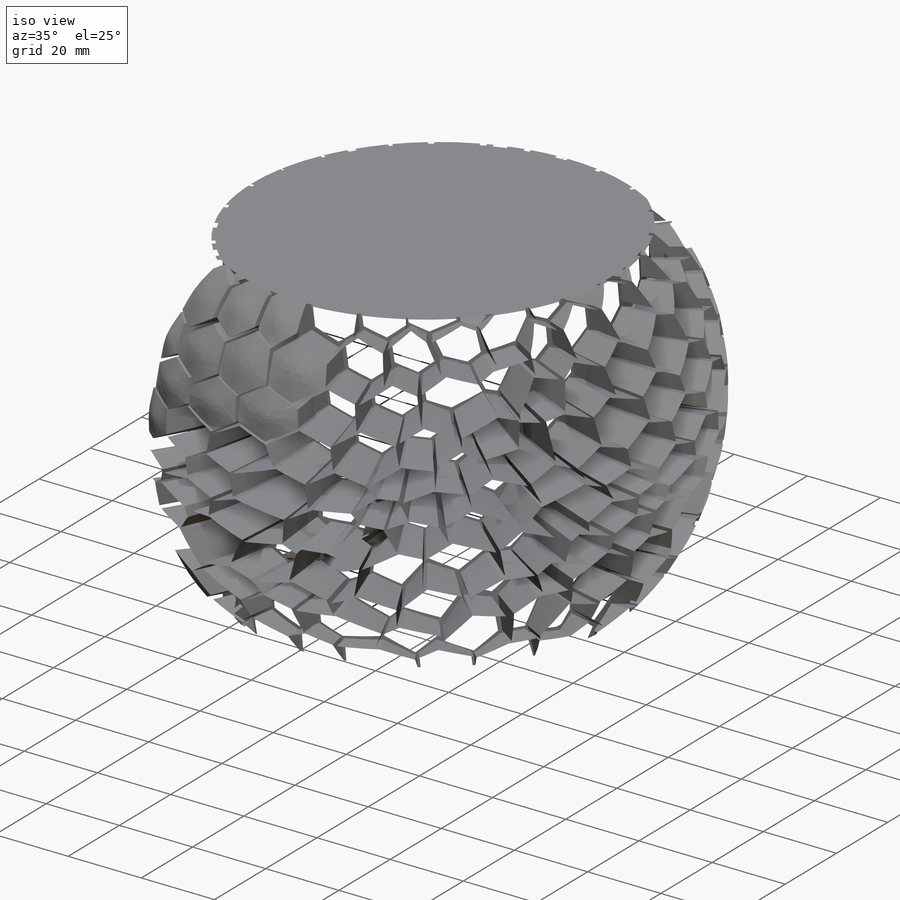
[diagram: iso view]
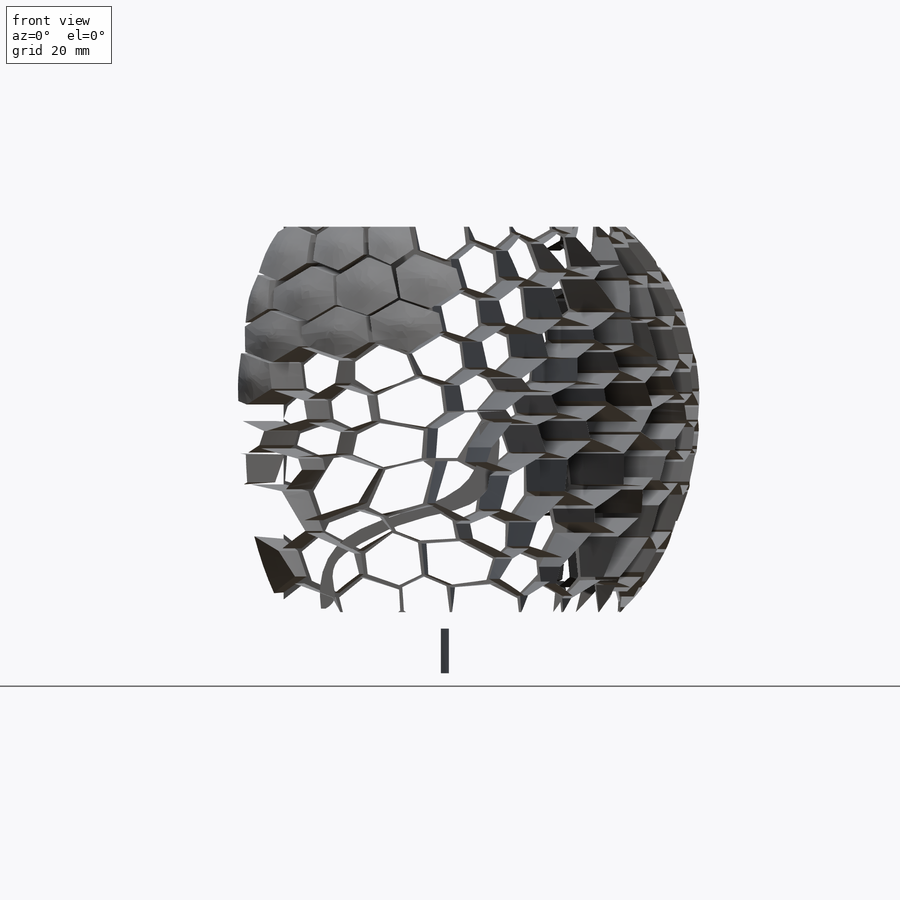
[diagram: front view]
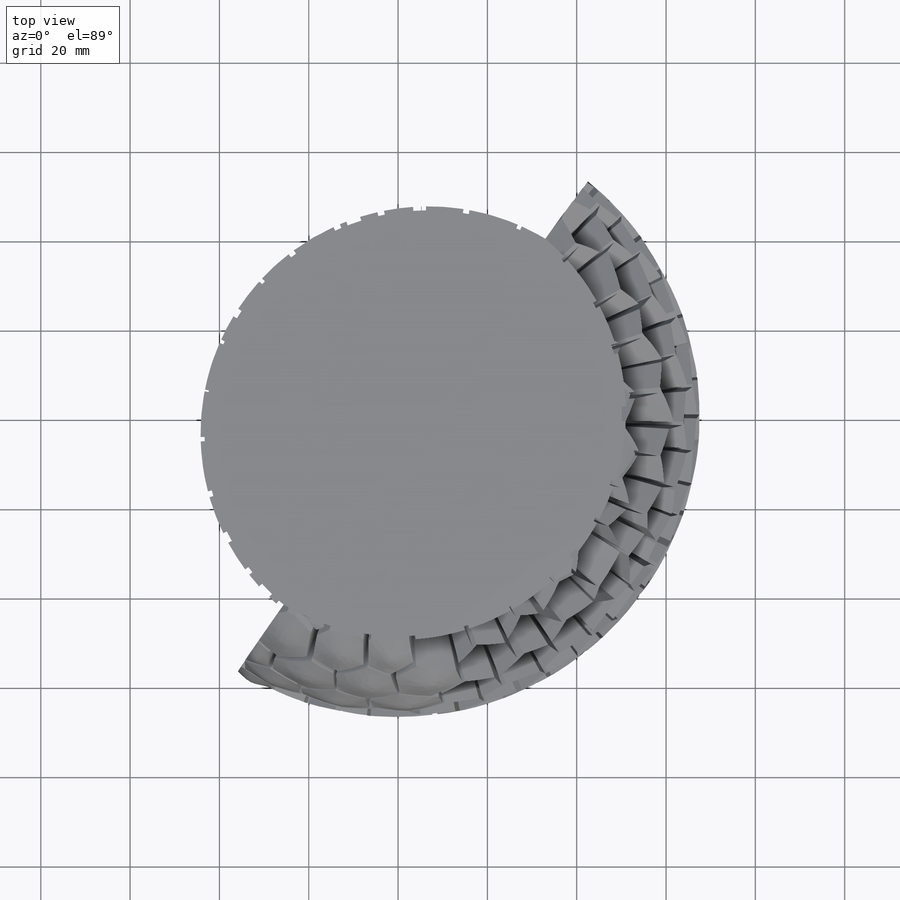
[diagram: top view]
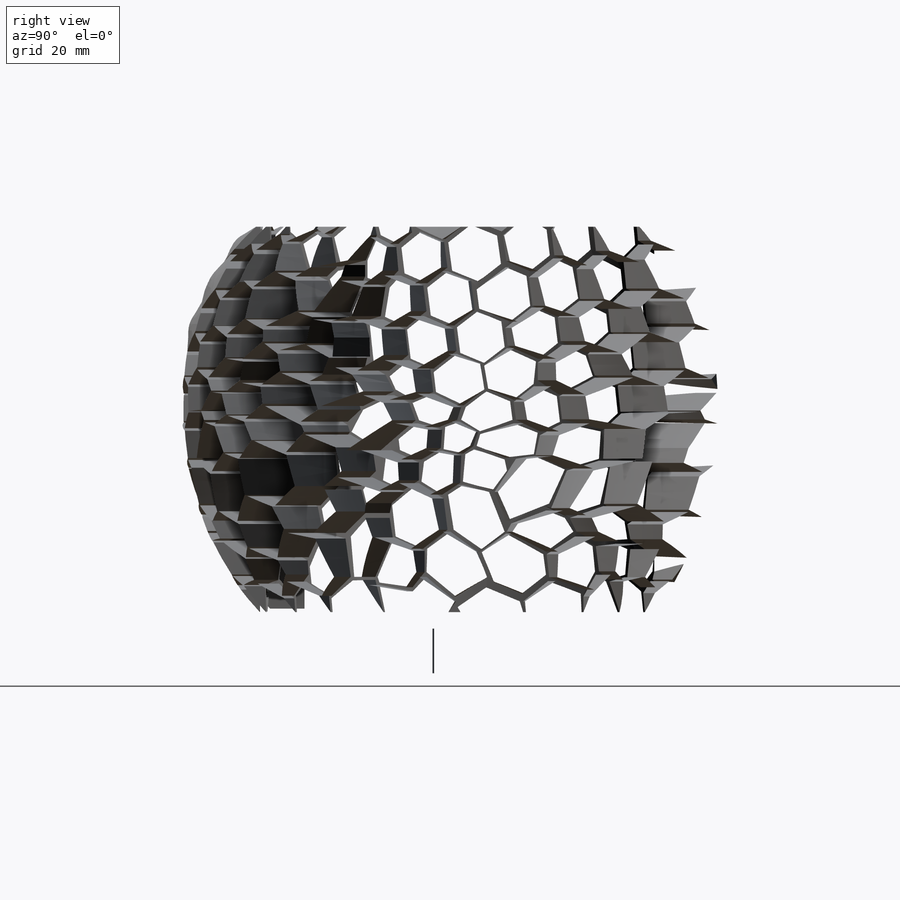
[diagram: right view]
SOLIDWORKS PART (.sldprt)
format: sldprt  version: not decoded by parser v0  size: 22,652,928 bytes
history: native  units: mm
features: sketch x27, dome x12, cut_extrude x7, extrude x4, fillet x4, plane x3, delete_body x2, material x1, cut_revolve x1, revolve x1, mirror x1 (+12 scaffold rows collapsed)
feature tree (75):
  scaffold x12  (default folders/planes/origin — collapsed)
  material  "Material <not specified>"
  sketch  "Sketch2"  dims[c1.D1=120.0mm c1.D2=120.0mm c2.D1=100.0mm c2.D2=100.0mm]
  extrude  "Boss-Extrude1"  Depth=120mm
  fillet  "Fillet1"  Radius=50mm
  fillet  "ModelUUID"  [1 undecoded]
  fillet  "UUID"  [1 undecoded]
  fillet  "ModelUUID"  [1 undecoded]
  sketch  "Sketch27"
  sketch  "Sketch13"
  sketch  "Sketch32"  dims[D1=0.1mm]
  extrude  "Boss-Extrude5"  [1 undecoded]
  sketch  "Sketch33"
  plane  "Plane2"
  sketch  "Sketch34"  dims[c1.D1=0.0mm c1.D2=0.0mm c1.D3=0.0mm c1.D4=0.0mm c1.D5=0.0mm c1.D6=0.0mm c1.D7=0.0mm c1.D8=0.0mm c1.D9=0.0mm c1.D10=0.0mm c1.D11=0.0mm c1.D12=0.0mm c1.D13=0.0mm c1.D14=0.0mm c1.D15=0.0mm c1.D16=0.0mm c1.D17=0.0mm c1.D18=0.0mm c1.D19=0.0mm c1.D20=0.0mm c1.D21=0.0mm c1.D22=0.0mm c1.D23=0.0mm c1.D24=0.0mm c1.D25=0.0mm c1.D26=0.0mm c1.D27=0.0mm c1.D28=0.0mm c1.D29=0.0mm c1.D30=0.0mm c1.D31=0.0mm c1.D32=0.0mm c1.D33=0.0mm c1.D34=0.0mm c1.D35=0.0mm c1.D36=0.0mm c1.D37=0.0mm c1.D38=0.0mm c1.D39=0.0mm c1.D40=0.0mm c1.D41=0.0mm c1.D42=0.0mm c1.D43=0.0mm c1.D44=0.0mm c1.D45=0.0mm c1.D46=0.0mm c1.D47=0.0mm c1.D48=0.0mm c1.D49=0.0mm c1.D50=0.0mm c1.D51=0.0mm c1.D52=0.0mm c1.D53=0.0mm c1.D54=0.0mm c1.D55=0.0mm c1.D56=0.0mm c1.D57=0.0mm c1.D58=0.0mm c1.D59=0.0mm c1.D60=0.0mm c1.D61=0.0mm c1.D62=0.0mm c1.D63=0.0mm c1.D64=0.0mm c1.D65=0.0mm c1.D66=0.0mm c1.D67=0.0mm c1.D68=0.0mm c1.D69=0.0mm c1.D70=0.0mm c1.D71=0.0mm c1.D72=0.0mm c1.D73=0.0mm c1.D74=0.0mm c1.D75=0.0mm c1.D76=0.0mm c1.D77=0.0mm c1.D78=2.0 c1.D79=2.0 c2.D1=32.0mm]
  sketch  "Sketch35"  dims[D1=2.0mm]
  sketch  "Sketch39"  dims[D1=20.0mm]
  extrude  "Boss-Extrude7"  Depth=140mm
  sketch  "Sketch47"  dims[D1=0.0mm]
  sketch  "Sketch42"
  sketch  "Sketch45"
  sketch  "Sketch46"  dims[D1=0.0mm]
  sketch  "Sketch49"  dims[D1=0.0mm]
  extrude  "Boss-Extrude9"  Depth=20mm
  sketch  "Sketch50"  dims[D1=0.0mm]
  cut_extrude  "Cut-Extrude5"  Depth=20mm
  sketch  "Sketch51"  dims[D1=0.0mm]
  sketch  "Sketch48"  dims[D1=~112.463022mm]
  cut_revolve  "Cut-Revolve4"  Angle=360deg
  sketch  "Sketch53"
  cut_extrude  "Cut-Extrude7"  Depth=40mm
  sketch  "Sketch54"  dims[D1=0.0mm]
  cut_extrude  "Cut-Extrude8"  Depth=40mm
  sketch  "Sketch55"  dims[D1=2.0mm]
  delete_body  "Body-Delete1"
  revolve  "Revolve1"  Angle=129deg
  sketch  "Sketch58"
  cut_extrude  "Cut-Extrude9"  Depth=40mm
  sketch  "Sketch59"
  sketch  "Sketch60"  dims[D1=0.0mm]
  sketch  "Sketch61"
  cut_extrude  "Cut-Extrude10"  Depth=10mm
  plane  "Plane3"
  plane  "Plane4"  Offset=70mm
  sketch  "Sketch63"
  sketch  "Sketch64"
  cut_extrude  "Cut-Extrude13"  Depth=10mm
  sketch  "Sketch65"
  dome  "Dome2"
  dome  "Dome3"
  dome  "Dome4"
  dome  "Dome5"
  dome  "Dome6"
  dome  "Dome7"
  dome  "Dome8"
  dome  "Dome9"
  dome  "Dome10"
  dome  "Dome11"
  dome  "Dome12"
  dome  "Dome14"
  sketch  "Sketch66"
  cut_extrude  "Cut-Extrude14"  [1 undecoded]
  mirror  "Mirror1"
  delete_body  "Body-Delete2"
decode coverage: 26 of 59 modeling features carry decoded parameters
note: ~ marks probable driven/reference dimensions
note: 5 parameter values undecoded
summary: no parameter record found for 5 features
note: suppression state not decoded; provenance and decode notes live in map.json
